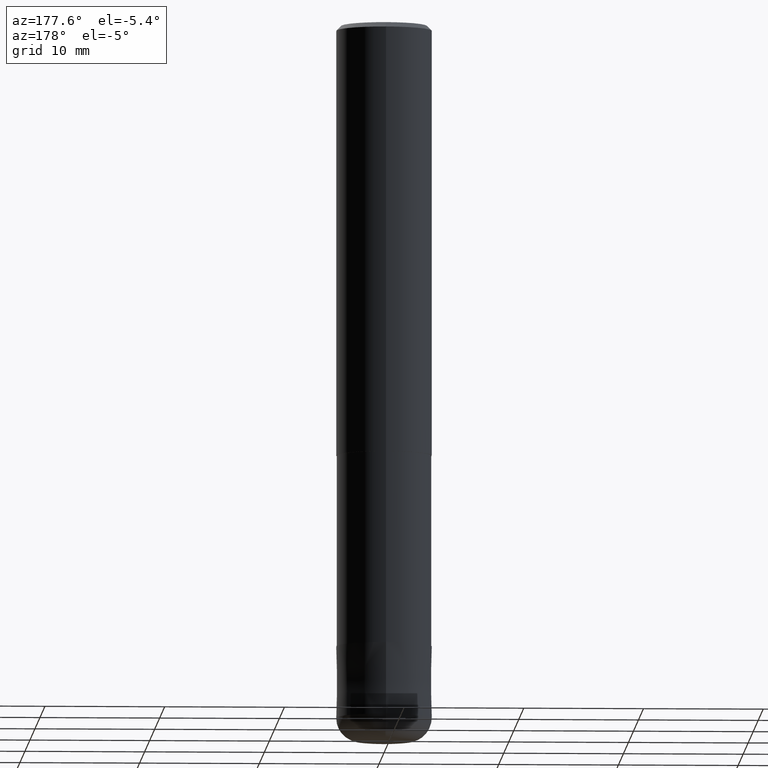
[diagram: clean part render]
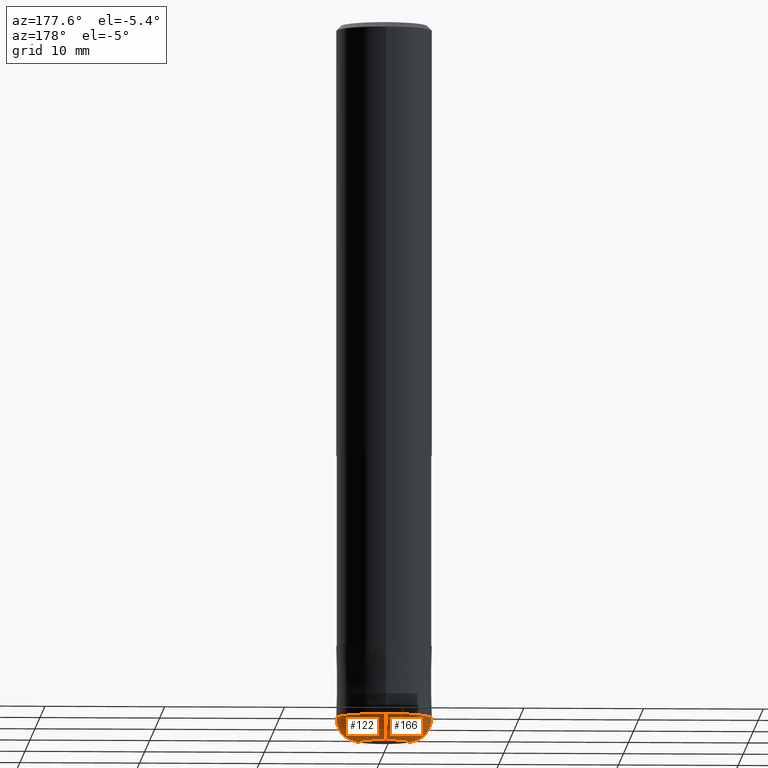
[diagram: same view with one multi-face feature highlighted, each face labeled with its STEP entity id]
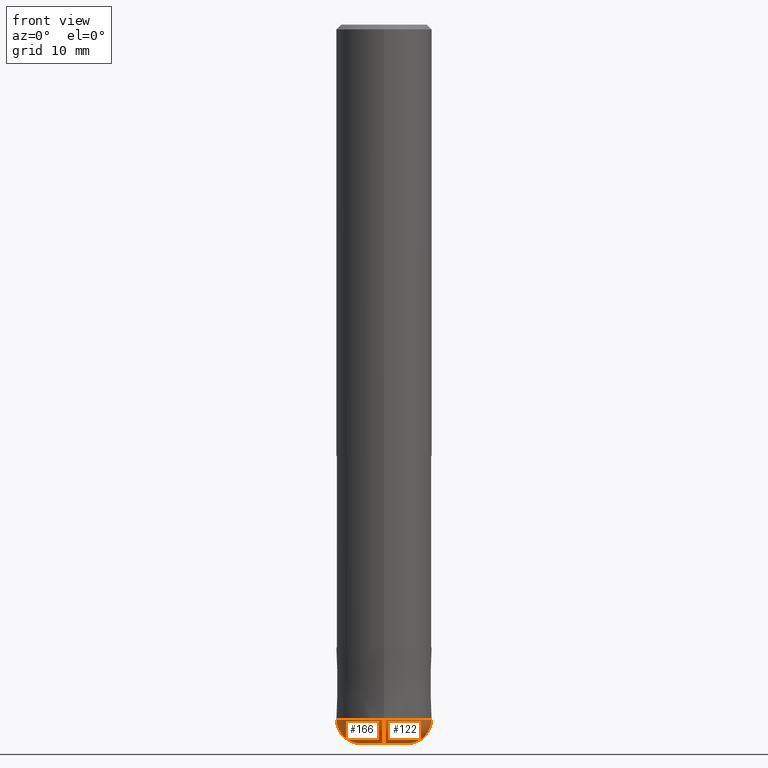
[diagram: same view with one multi-face feature highlighted, each face labeled with its STEP entity id]
A machine part, auxiliary view. The highlighted faces form ONE feature: a constant-radius fillet chain: 2 tangent blend faces with common blend radius 2 mm. The faces share edges in the B-rep.
A second angle (front view) of the same feature is appended — it is thin or edge-on in the first view.
Their STEP definitions:
[1] entity #122 (Torus):
#104=VERTEX_POINT('',#245);
#112=VERTEX_POINT('',#254);
#114=VERTEX_POINT('',#256);
#122=ADVANCED_FACE('',(#264),#265,.T.);
#144=VERTEX_POINT('',#288);
#156=EDGE_CURVE('',#104,#112,#301,.T.);
#174=EDGE_CURVE('',#114,#144,#322,.T.);
#190=EDGE_CURVE('',#104,#114,#341,.T.);
#204=EDGE_CURVE('',#144,#112,#357,.T.);
#245=CARTESIAN_POINT('',(0.0,2.0,-60.0));
#254=CARTESIAN_POINT('',(2.44921270764475E-016,-2.0,-60.0));
#256=CARTESIAN_POINT('',(0.0,4.0,-58.0));
#264=FACE_OUTER_BOUND('',#414,.T.);
#265=TOROIDAL_SURFACE('',#415,2.0,2.0);
#288=CARTESIAN_POINT('',(4.89842541528951E-016,-4.0,-58.0));
#301=CIRCLE('',#465,2.0);
#322=CIRCLE('',#487,4.0);
#341=CIRCLE('',#513,2.0);
#357=CIRCLE('',#535,2.0);
#414=EDGE_LOOP('',(#583,#584,#585,#586));
#415=AXIS2_PLACEMENT_3D('',#587,#588,#589);
#465=AXIS2_PLACEMENT_3D('',#628,#629,#630);
#487=AXIS2_PLACEMENT_3D('',#659,#660,#661);
#513=AXIS2_PLACEMENT_3D('',#692,#693,#694);
#535=AXIS2_PLACEMENT_3D('',#712,#713,#714);
#583=ORIENTED_EDGE('',*,*,#204,.T.);
#584=ORIENTED_EDGE('',*,*,#156,.F.);
#585=ORIENTED_EDGE('',*,*,#190,.T.);
#586=ORIENTED_EDGE('',*,*,#174,.T.);
#587=CARTESIAN_POINT('',(0.0,0.0,-58.0));
#588=DIRECTION('',(0.0,0.0,-1.0));
#589=DIRECTION('',(0.0,-1.0,0.0));
#628=CARTESIAN_POINT('',(0.0,0.0,-60.0));
#629=DIRECTION('',(0.0,0.0,-1.0));
#630=DIRECTION('',(0.0,1.0,0.0));
#659=CARTESIAN_POINT('',(0.0,0.0,-58.0));
#660=DIRECTION('',(0.0,0.0,-1.0));
#661=DIRECTION('',(0.0,1.0,0.0));
#692=CARTESIAN_POINT('',(-2.44921270764475E-016,2.0,-58.0));
#693=DIRECTION('',(1.0,1.22460635382238E-016,0.0));
#694=DIRECTION('',(-1.22460635382238E-016,1.0,0.0));
#712=CARTESIAN_POINT('',(2.44921270764475E-016,-2.0,-58.0));
#713=DIRECTION('',(1.0,1.22460635382238E-016,0.0));
#714=DIRECTION('',(1.22460635382238E-016,-1.0,-0.0));
[2] entity #166 (Torus):
#104=VERTEX_POINT('',#245);
#112=VERTEX_POINT('',#254);
#114=VERTEX_POINT('',#256);
#136=EDGE_CURVE('',#112,#104,#280,.T.);
#140=EDGE_CURVE('',#144,#114,#284,.T.);
#144=VERTEX_POINT('',#288);
#166=ADVANCED_FACE('',(#313),#314,.T.);
#190=EDGE_CURVE('',#104,#114,#341,.T.);
#204=EDGE_CURVE('',#144,#112,#357,.T.);
#245=CARTESIAN_POINT('',(0.0,2.0,-60.0));
#254=CARTESIAN_POINT('',(2.44921270764475E-016,-2.0,-60.0));
#256=CARTESIAN_POINT('',(0.0,4.0,-58.0));
#280=CIRCLE('',#436,2.0);
#284=CIRCLE('',#441,4.0);
#288=CARTESIAN_POINT('',(4.89842541528951E-016,-4.0,-58.0));
#313=FACE_OUTER_BOUND('',#478,.T.);
#314=TOROIDAL_SURFACE('',#479,2.0,2.0);
#341=CIRCLE('',#513,2.0);
#357=CIRCLE('',#535,2.0);
#436=AXIS2_PLACEMENT_3D('',#613,#614,#615);
#441=AXIS2_PLACEMENT_3D('',#616,#617,#618);
#478=EDGE_LOOP('',(#651,#652,#653,#654));
#479=AXIS2_PLACEMENT_3D('',#655,#656,#657);
#513=AXIS2_PLACEMENT_3D('',#692,#693,#694);
#535=AXIS2_PLACEMENT_3D('',#712,#713,#714);
#613=CARTESIAN_POINT('',(0.0,0.0,-60.0));
#614=DIRECTION('',(0.0,0.0,-1.0));
#615=DIRECTION('',(0.0,1.0,0.0));
#616=CARTESIAN_POINT('',(0.0,0.0,-58.0));
#617=DIRECTION('',(0.0,0.0,-1.0));
#618=DIRECTION('',(0.0,1.0,0.0));
#651=ORIENTED_EDGE('',*,*,#204,.F.);
#652=ORIENTED_EDGE('',*,*,#140,.T.);
#653=ORIENTED_EDGE('',*,*,#190,.F.);
#654=ORIENTED_EDGE('',*,*,#136,.F.);
#655=CARTESIAN_POINT('',(0.0,0.0,-58.0));
#656=DIRECTION('',(0.0,0.0,-1.0));
#657=DIRECTION('',(0.0,-1.0,0.0));
#692=CARTESIAN_POINT('',(-2.44921270764475E-016,2.0,-58.0));
#693=DIRECTION('',(1.0,1.22460635382238E-016,0.0));
#694=DIRECTION('',(-1.22460635382238E-016,1.0,0.0));
#712=CARTESIAN_POINT('',(2.44921270764475E-016,-2.0,-58.0));
#713=DIRECTION('',(1.0,1.22460635382238E-016,0.0));
#714=DIRECTION('',(1.22460635382238E-016,-1.0,-0.0));